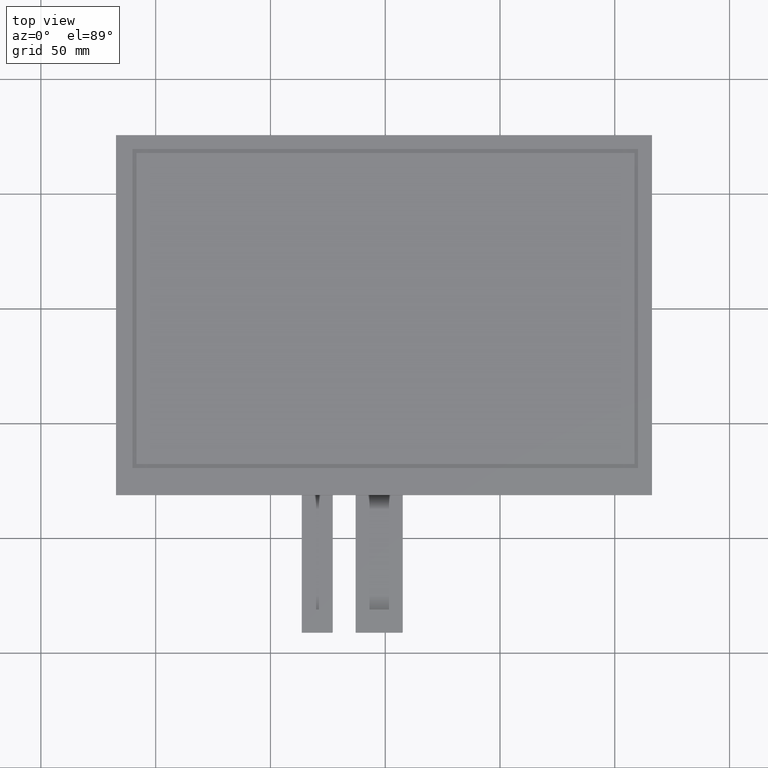
[diagram: clean part render]
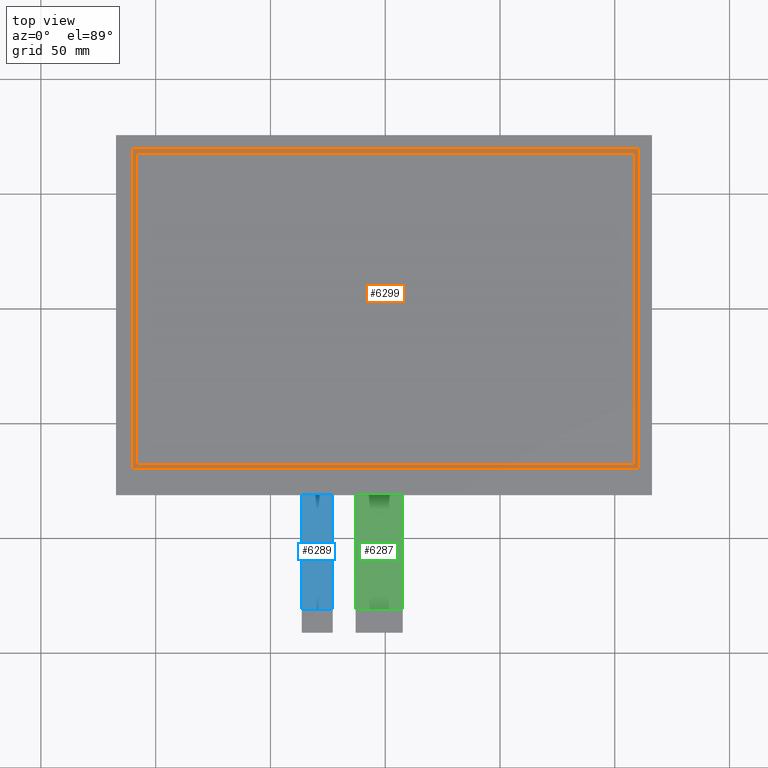
[diagram: same view with three faces highlighted in distinct colors, each labeled with its STEP entity id]
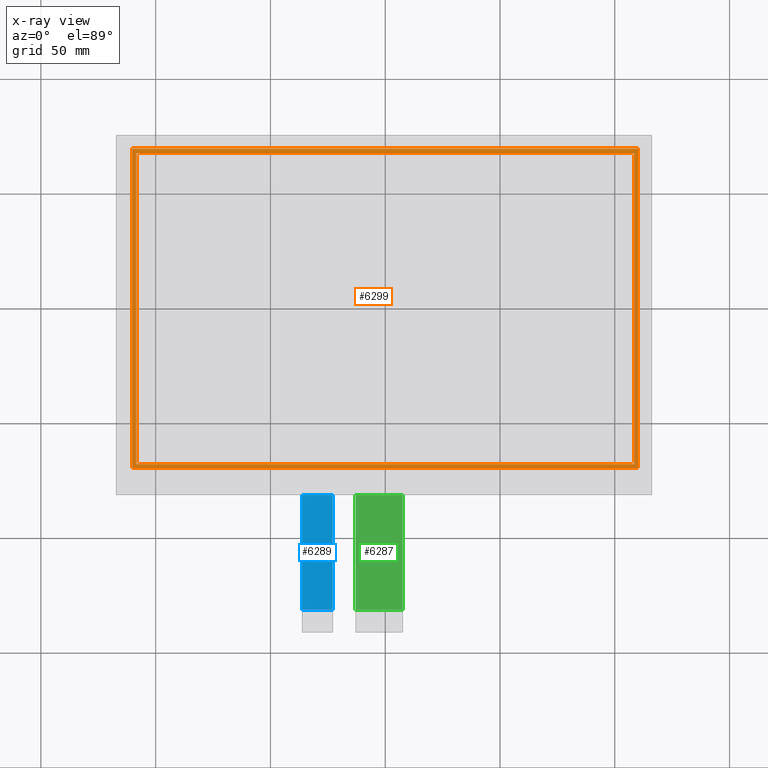
[diagram: x-ray of the same camera — body ghosted, the three highlighted faces saturated]
A machine part, top view with three faces highlighted in distinct colors.
The next image is the same camera in x-ray (body ghosted, the three faces saturated) — at least one of them is partly hidden behind the body in this view.
Their STEP definitions:

[orange] entity #6299 — the highlighted planar face has unit normal (0, 0, -1).
#67=FACE_BOUND('',#966,.T.);
#361=PLANE('',#6629);
#663=FACE_OUTER_BOUND('',#965,.T.);
#965=EDGE_LOOP('',(#5953,#5954,#5955,#5956));
#966=EDGE_LOOP('',(#5957,#5958,#5959,#5960));
#1823=LINE('',#9853,#2703);
#1827=LINE('',#9860,#2707);
#1830=LINE('',#9866,#2710);
#1832=LINE('',#9869,#2712);
#1835=LINE('',#9877,#2715);
#1839=LINE('',#9884,#2719);
#1842=LINE('',#9890,#2722);
#1844=LINE('',#9893,#2724);
#2703=VECTOR('',#8075,10.);
#2707=VECTOR('',#8081,10.);
#2710=VECTOR('',#8086,10.);
#2712=VECTOR('',#8090,10.);
#2715=VECTOR('',#8095,10.);
#2719=VECTOR('',#8101,10.);
#2722=VECTOR('',#8106,10.);
#2724=VECTOR('',#8110,10.);
#3315=VERTEX_POINT('',#9850);
#3316=VERTEX_POINT('',#9852);
#3318=VERTEX_POINT('',#9858);
#3320=VERTEX_POINT('',#9864);
#3323=VERTEX_POINT('',#9874);
#3324=VERTEX_POINT('',#9876);
#3326=VERTEX_POINT('',#9882);
#3328=VERTEX_POINT('',#9888);
#4191=EDGE_CURVE('',#3315,#3316,#1823,.T.);
#4195=EDGE_CURVE('',#3318,#3315,#1827,.T.);
#4198=EDGE_CURVE('',#3320,#3318,#1830,.T.);
#4200=EDGE_CURVE('',#3316,#3320,#1832,.T.);
#4203=EDGE_CURVE('',#3323,#3324,#1835,.T.);
#4207=EDGE_CURVE('',#3326,#3323,#1839,.T.);
#4210=EDGE_CURVE('',#3328,#3326,#1842,.T.);
#4212=EDGE_CURVE('',#3324,#3328,#1844,.T.);
#5953=ORIENTED_EDGE('',*,*,#4212,.F.);
#5954=ORIENTED_EDGE('',*,*,#4203,.F.);
#5955=ORIENTED_EDGE('',*,*,#4207,.F.);
#5956=ORIENTED_EDGE('',*,*,#4210,.F.);
#5957=ORIENTED_EDGE('',*,*,#4200,.F.);
#5958=ORIENTED_EDGE('',*,*,#4191,.F.);
#5959=ORIENTED_EDGE('',*,*,#4195,.F.);
#5960=ORIENTED_EDGE('',*,*,#4198,.F.);
#6299=ADVANCED_FACE('',(#663,#67),#361,.F.);
#6629=AXIS2_PLACEMENT_3D('',#9894,#8111,#8112);
#8075=DIRECTION('',(1.,0.,0.));
#8081=DIRECTION('',(0.,-1.,0.));
#8086=DIRECTION('',(-1.,0.,0.));
#8090=DIRECTION('',(0.,1.,0.));
#8095=DIRECTION('',(-1.27703582990672E-16,1.,0.));
#8101=DIRECTION('',(-1.,-1.2091737425578E-16,0.));
#8106=DIRECTION('',(1.27703582990672E-16,-1.,0.));
#8110=DIRECTION('',(1.,4.03057914185934E-17,0.));
#8111=DIRECTION('center_axis',(0.,0.,-1.));
#8112=DIRECTION('ref_axis',(-1.,0.,0.));
#9850=CARTESIAN_POINT('',(-108.48,-67.8,-0.1));
#9852=CARTESIAN_POINT('',(108.48,-67.8,-0.1));
#9853=CARTESIAN_POINT('',(108.48,-67.8,-0.1));
#9858=CARTESIAN_POINT('',(-108.48,67.8,-0.1));
#9860=CARTESIAN_POINT('',(-108.48,-67.8,-0.1));
#9864=CARTESIAN_POINT('',(108.48,67.8,-0.1));
#9866=CARTESIAN_POINT('',(-108.48,67.8,-0.1));
#9869=CARTESIAN_POINT('',(108.48,67.8,-0.1));
#9874=CARTESIAN_POINT('',(-110.18,-69.5,-0.1));
#9876=CARTESIAN_POINT('',(-110.18,69.6,-0.1));
#9877=CARTESIAN_POINT('',(-110.18,69.6,-0.1));
#9882=CARTESIAN_POINT('',(110.18,-69.5,-0.1));
#9884=CARTESIAN_POINT('',(-110.18,-69.5,-0.1));
#9888=CARTESIAN_POINT('',(110.18,69.6,-0.1));
#9890=CARTESIAN_POINT('',(110.18,-69.5,-0.1));
#9893=CARTESIAN_POINT('',(110.18,69.6,-0.1));
#9894=CARTESIAN_POINT('Origin',(-1.77635683940025E-14,0.0500000000000078,
-0.1));

[blue] entity #6289 — the highlighted planar face has unit normal (0, 0, 1).
#351=PLANE('',#6619);
#653=FACE_OUTER_BOUND('',#955,.T.);
#955=EDGE_LOOP('',(#5913,#5914,#5915,#5916));
#1094=LINE('',#8385,#1974);
#1803=LINE('',#9812,#2683);
#1815=LINE('',#9835,#2695);
#1819=LINE('',#9843,#2699);
#1974=VECTOR('',#6774,10.);
#2683=VECTOR('',#8033,10.);
#2695=VECTOR('',#8055,10.);
#2699=VECTOR('',#8067,10.);
#2862=VERTEX_POINT('',#8382);
#2863=VERTEX_POINT('',#8384);
#3305=VERTEX_POINT('',#9809);
#3306=VERTEX_POINT('',#9811);
#3458=EDGE_CURVE('',#2863,#2862,#1094,.T.);
#4171=EDGE_CURVE('',#3306,#3305,#1803,.T.);
#4183=EDGE_CURVE('',#3305,#2863,#1815,.T.);
#4187=EDGE_CURVE('',#3306,#2862,#1819,.T.);
#5913=ORIENTED_EDGE('',*,*,#4183,.T.);
#5914=ORIENTED_EDGE('',*,*,#3458,.T.);
#5915=ORIENTED_EDGE('',*,*,#4187,.F.);
#5916=ORIENTED_EDGE('',*,*,#4171,.T.);
#6289=ADVANCED_FACE('',(#653),#351,.T.);
#6619=AXIS2_PLACEMENT_3D('',#9842,#8065,#8066);
#6774=DIRECTION('',(0.,1.,0.));
#8033=DIRECTION('',(3.70074341541719E-16,-1.,0.));
#8055=DIRECTION('',(1.,0.,0.));
#8065=DIRECTION('center_axis',(0.,0.,1.));
#8066=DIRECTION('ref_axis',(1.,0.,0.));
#8067=DIRECTION('',(1.,1.52150478749486E-16,0.));
#8382=CARTESIAN_POINT('',(-22.8799999999999,-81.2,-1.1));
#8384=CARTESIAN_POINT('',(-22.8799999999999,-131.2,-1.1));
#8385=CARTESIAN_POINT('',(-22.8799999999999,-141.2,-1.1));
#9809=CARTESIAN_POINT('',(-36.3799999999999,-131.2,-1.1));
#9811=CARTESIAN_POINT('',(-36.3799999999999,-81.2,-1.1));
#9812=CARTESIAN_POINT('',(-36.3799999999999,-81.2,-1.1));
#9835=CARTESIAN_POINT('',(-26.2549999999999,-131.2,-1.1));
#9842=CARTESIAN_POINT('Origin',(-29.6299999999999,-111.2,-1.1));
#9843=CARTESIAN_POINT('',(43.2950000000001,-81.2,-1.1));

[green] entity #6287 — the highlighted planar face has unit normal (0, 0, 1).
#349=PLANE('',#6617);
#651=FACE_OUTER_BOUND('',#953,.T.);
#953=EDGE_LOOP('',(#5905,#5906,#5907,#5908));
#1272=LINE('',#8750,#2152);
#1810=LINE('',#9826,#2690);
#1813=LINE('',#9831,#2693);
#1817=LINE('',#9839,#2697);
#2152=VECTOR('',#6972,10.);
#2690=VECTOR('',#8044,10.);
#2693=VECTOR('',#8049,10.);
#2697=VECTOR('',#8061,10.);
#3039=VERTEX_POINT('',#8747);
#3040=VERTEX_POINT('',#8749);
#3310=VERTEX_POINT('',#9823);
#3311=VERTEX_POINT('',#9825);
#3640=EDGE_CURVE('',#3040,#3039,#1272,.T.);
#4178=EDGE_CURVE('',#3311,#3310,#1810,.T.);
#4181=EDGE_CURVE('',#3310,#3040,#1813,.T.);
#4185=EDGE_CURVE('',#3311,#3039,#1817,.T.);
#5905=ORIENTED_EDGE('',*,*,#4181,.T.);
#5906=ORIENTED_EDGE('',*,*,#3640,.T.);
#5907=ORIENTED_EDGE('',*,*,#4185,.F.);
#5908=ORIENTED_EDGE('',*,*,#4178,.T.);
#6287=ADVANCED_FACE('',(#651),#349,.T.);
#6617=AXIS2_PLACEMENT_3D('',#9838,#8059,#8060);
#6972=DIRECTION('',(-3.70074341541719E-16,1.,0.));
#8044=DIRECTION('',(3.7007434154172E-16,-1.,0.));
#8049=DIRECTION('',(1.,0.,0.));
#8059=DIRECTION('center_axis',(0.,0.,1.));
#8060=DIRECTION('ref_axis',(1.,0.,0.));
#8061=DIRECTION('',(1.,1.52150478749486E-16,0.));
#8747=CARTESIAN_POINT('',(7.62000000000016,-81.2,-1.1));
#8749=CARTESIAN_POINT('',(7.62000000000019,-131.2,-1.1));
#8750=CARTESIAN_POINT('',(7.62000000000018,-141.2,-1.1));
#9823=CARTESIAN_POINT('',(-12.88,-131.2,-1.1));
#9825=CARTESIAN_POINT('',(-12.8799999999999,-81.2,-1.1));
#9826=CARTESIAN_POINT('',(-12.8799999999999,-81.2,-1.1));
#9831=CARTESIAN_POINT('',(2.49500000000015,-131.2,-1.1));
#9838=CARTESIAN_POINT('Origin',(-2.62999999999988,-111.2,-1.1));
#9839=CARTESIAN_POINT('',(56.7950000000001,-81.2,-1.1));